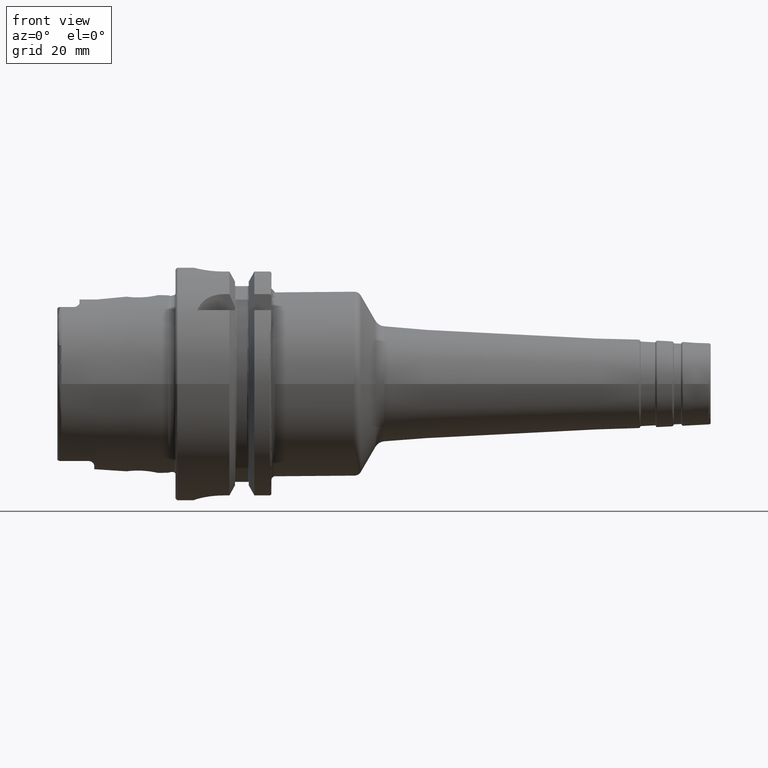
[diagram: clean part render]
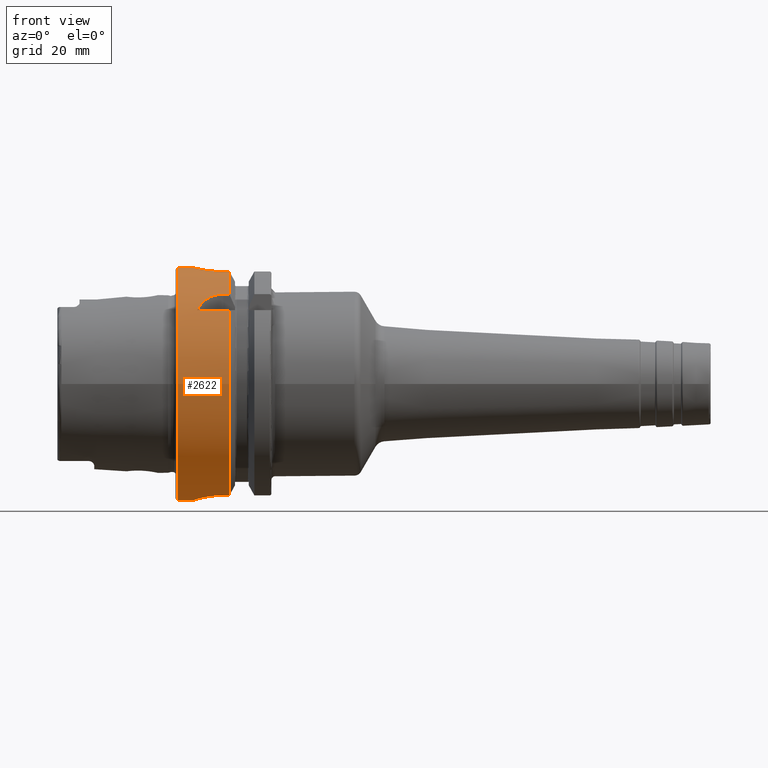
[diagram: same view with one face highlighted and labeled with its STEP entity id]
A machine part, front view. The second image highlights one B-rep face of the part: STEP entity #2622.
In plain terms, the highlighted cylindrical surface (bore or boss wall) has radius 31.5 mm, axis along (1, 0, 0).
Its self-contained STEP definition (entity closure, byte-faithful):
#56=B_SPLINE_CURVE_WITH_KNOTS('',3,(#4894,#4895,#4896,#4897,#4898,#4899,
#4900,#4901,#4902,#4903,#4904,#4905,#4906,#4907,#4908,#4909,#4910,#4911,
#4912,#4913,#4914,#4915,#4916,#4917,#4918,#4919),.UNSPECIFIED.,.F.,.F.,
(4,2,2,2,2,2,2,2,2,2,2,2,4),(0.,0.188688694287611,0.377377388575223,0.56606194688798,
0.754746505200737,0.943431063513494,1.13211562182625,1.32080431611386,1.50949301040147,
1.69818170468908,1.8868703989767,2.07555495728945,2.26423951560221),
 .UNSPECIFIED.);
#57=B_SPLINE_CURVE_WITH_KNOTS('',3,(#4920,#4921,#4922,#4923,#4924,#4925,
#4926,#4927,#4928,#4929),.UNSPECIFIED.,.F.,.F.,(4,2,2,2,4),(2.26423951560221,
2.45292407391497,2.64160863222772,2.83029732651534,3.01898602080295),
 .UNSPECIFIED.);
#60=B_SPLINE_CURVE_WITH_KNOTS('',3,(#4985,#4986,#4987,#4988,#4989,#4990,
#4991,#4992,#4993,#4994,#4995,#4996),.UNSPECIFIED.,.F.,.F.,(4,2,2,2,2,4),
(1.1085154204615,1.31979218709236,1.52798350480179,1.73617482251122,1.90421770126337,
2.07226058001552),.UNSPECIFIED.);
#65=B_SPLINE_CURVE_WITH_KNOTS('',3,(#5101,#5102,#5103,#5104,#5105,#5106,
#5107,#5108,#5109,#5110),.UNSPECIFIED.,.F.,.F.,(4,2,2,2,4),(0.,0.30293011231322,
0.605860224626439,0.90976031392917,1.2136604032319),.UNSPECIFIED.);
#66=B_SPLINE_CURVE_WITH_KNOTS('',3,(#5122,#5123,#5124,#5125,#5126,#5127,
#5128,#5129,#5130,#5131),.UNSPECIFIED.,.F.,.F.,(4,2,2,2,4),(1.20927420824097,
1.5131742975437,1.81707438684643,2.12000449915965,2.42293461147287),
 .UNSPECIFIED.);
#74=B_SPLINE_CURVE_WITH_KNOTS('',3,(#5219,#5220,#5221,#5222,#5223,#5224,
#5225,#5226,#5227,#5228,#5229,#5230,#5231,#5232,#5233,#5234,#5235,#5236),
 .UNSPECIFIED.,.F.,.F.,(4,2,2,2,2,2,2,2,4),(0.,0.302805879979318,0.605611759958635,
0.908372461246501,1.21113316253437,1.51389386382223,1.8166545651101,2.11946044508942,
2.42226632506874),.UNSPECIFIED.);
#127=FACE_BOUND('',#659,.T.);
#230=LINE('',#4960,#347);
#235=LINE('',#5005,#352);
#246=LINE('',#5093,#363);
#254=LINE('',#5159,#371);
#258=LINE('',#5217,#375);
#259=LINE('',#5238,#376);
#260=LINE('',#5241,#377);
#347=VECTOR('',#3536,10.);
#352=VECTOR('',#3547,10.);
#363=VECTOR('',#3594,10.);
#371=VECTOR('',#3618,10.);
#375=VECTOR('',#3628,10.);
#376=VECTOR('',#3629,10.);
#377=VECTOR('',#3632,31.5);
#424=CYLINDRICAL_SURFACE('',#2937,31.5);
#516=FACE_OUTER_BOUND('',#658,.T.);
#658=EDGE_LOOP('',(#2168,#2169,#2170,#2171,#2172,#2173,#2174,#2175,#2176,
#2177,#2178,#2179,#2180,#2181,#2182,#2183,#2184,#2185,#2186));
#659=EDGE_LOOP('',(#2187,#2188));
#868=CIRCLE('',#2915,31.5);
#869=CIRCLE('',#2916,31.5);
#876=CIRCLE('',#2931,31.5);
#878=CIRCLE('',#2938,31.5);
#879=CIRCLE('',#2939,31.5);
#880=CIRCLE('',#2940,31.5);
#881=CIRCLE('',#2941,31.5);
#1124=VERTEX_POINT('',#4891);
#1125=VERTEX_POINT('',#4893);
#1133=VERTEX_POINT('',#4957);
#1134=VERTEX_POINT('',#4959);
#1138=VERTEX_POINT('',#4984);
#1140=VERTEX_POINT('',#5001);
#1145=VERTEX_POINT('',#5017);
#1146=VERTEX_POINT('',#5019);
#1161=VERTEX_POINT('',#5090);
#1162=VERTEX_POINT('',#5092);
#1164=VERTEX_POINT('',#5100);
#1166=VERTEX_POINT('',#5115);
#1168=VERTEX_POINT('',#5121);
#1178=VERTEX_POINT('',#5214);
#1179=VERTEX_POINT('',#5216);
#1180=VERTEX_POINT('',#5218);
#1181=VERTEX_POINT('',#5237);
#1182=VERTEX_POINT('',#5240);
#1183=VERTEX_POINT('',#5242);
#1470=EDGE_CURVE('',#1125,#1124,#56,.T.);
#1471=EDGE_CURVE('',#1124,#1125,#57,.T.);
#1480=EDGE_CURVE('',#1134,#1133,#230,.T.);
#1486=EDGE_CURVE('',#1133,#1138,#60,.T.);
#1490=EDGE_CURVE('',#1138,#1140,#235,.T.);
#1496=EDGE_CURVE('',#1134,#1145,#868,.T.);
#1497=EDGE_CURVE('',#1145,#1146,#869,.T.);
#1518=EDGE_CURVE('',#1162,#1161,#246,.T.);
#1521=EDGE_CURVE('',#1161,#1164,#65,.T.);
#1524=EDGE_CURVE('',#1164,#1166,#876,.T.);
#1527=EDGE_CURVE('',#1166,#1168,#66,.T.);
#1535=EDGE_CURVE('',#1168,#1146,#254,.T.);
#1544=EDGE_CURVE('',#1178,#1140,#878,.T.);
#1545=EDGE_CURVE('',#1178,#1179,#258,.T.);
#1546=EDGE_CURVE('',#1179,#1180,#74,.T.);
#1547=EDGE_CURVE('',#1180,#1181,#259,.T.);
#1548=EDGE_CURVE('',#1162,#1181,#879,.T.);
#1549=EDGE_CURVE('',#1145,#1182,#260,.T.);
#1550=EDGE_CURVE('',#1182,#1183,#880,.T.);
#1551=EDGE_CURVE('',#1183,#1182,#881,.T.);
#2168=ORIENTED_EDGE('',*,*,#1490,.T.);
#2169=ORIENTED_EDGE('',*,*,#1544,.F.);
#2170=ORIENTED_EDGE('',*,*,#1545,.T.);
#2171=ORIENTED_EDGE('',*,*,#1546,.T.);
#2172=ORIENTED_EDGE('',*,*,#1547,.T.);
#2173=ORIENTED_EDGE('',*,*,#1548,.F.);
#2174=ORIENTED_EDGE('',*,*,#1518,.T.);
#2175=ORIENTED_EDGE('',*,*,#1521,.T.);
#2176=ORIENTED_EDGE('',*,*,#1524,.T.);
#2177=ORIENTED_EDGE('',*,*,#1527,.T.);
#2178=ORIENTED_EDGE('',*,*,#1535,.T.);
#2179=ORIENTED_EDGE('',*,*,#1497,.F.);
#2180=ORIENTED_EDGE('',*,*,#1549,.T.);
#2181=ORIENTED_EDGE('',*,*,#1550,.T.);
#2182=ORIENTED_EDGE('',*,*,#1551,.T.);
#2183=ORIENTED_EDGE('',*,*,#1549,.F.);
#2184=ORIENTED_EDGE('',*,*,#1496,.F.);
#2185=ORIENTED_EDGE('',*,*,#1480,.T.);
#2186=ORIENTED_EDGE('',*,*,#1486,.T.);
#2187=ORIENTED_EDGE('',*,*,#1470,.T.);
#2188=ORIENTED_EDGE('',*,*,#1471,.T.);
#2622=ADVANCED_FACE('',(#516,#127),#424,.T.);
#2915=AXIS2_PLACEMENT_3D('',#5018,#3560,#3561);
#2916=AXIS2_PLACEMENT_3D('',#5020,#3562,#3563);
#2931=AXIS2_PLACEMENT_3D('',#5116,#3603,#3604);
#2937=AXIS2_PLACEMENT_3D('',#5213,#3624,#3625);
#2938=AXIS2_PLACEMENT_3D('',#5215,#3626,#3627);
#2939=AXIS2_PLACEMENT_3D('',#5239,#3630,#3631);
#2940=AXIS2_PLACEMENT_3D('',#5243,#3633,#3634);
#2941=AXIS2_PLACEMENT_3D('',#5244,#3635,#3636);
#3536=DIRECTION('',(-1.,0.,0.));
#3547=DIRECTION('',(1.,0.,0.));
#3560=DIRECTION('center_axis',(1.,0.,0.));
#3561=DIRECTION('ref_axis',(0.,0.,-1.));
#3562=DIRECTION('center_axis',(1.,0.,0.));
#3563=DIRECTION('ref_axis',(0.,0.,-1.));
#3594=DIRECTION('',(-1.,0.,0.));
#3603=DIRECTION('center_axis',(-1.,0.,0.));
#3604=DIRECTION('ref_axis',(0.,1.,0.));
#3618=DIRECTION('',(1.,0.,0.));
#3624=DIRECTION('center_axis',(1.,0.,0.));
#3625=DIRECTION('ref_axis',(0.,1.,0.));
#3626=DIRECTION('center_axis',(1.,0.,0.));
#3627=DIRECTION('ref_axis',(0.,0.,-1.));
#3628=DIRECTION('',(-1.,0.,0.));
#3629=DIRECTION('',(1.,0.,0.));
#3630=DIRECTION('center_axis',(1.,0.,0.));
#3631=DIRECTION('ref_axis',(0.,0.,-1.));
#3632=DIRECTION('',(-1.,0.,0.));
#3633=DIRECTION('center_axis',(1.,0.,0.));
#3634=DIRECTION('ref_axis',(0.,0.,-1.));
#3635=DIRECTION('center_axis',(1.,0.,0.));
#3636=DIRECTION('ref_axis',(0.,0.,-1.));
#4891=CARTESIAN_POINT('',(12.,31.5,-6.12323399573677E-16));
#4893=CARTESIAN_POINT('',(7.,31.100643080168,5.));
#4894=CARTESIAN_POINT('Ctrl Pts',(7.,31.100643080168,5.));
#4895=CARTESIAN_POINT('Ctrl Pts',(6.37103768570796,31.100643080168,5.));
#4896=CARTESIAN_POINT('Ctrl Pts',(5.70089281579202,31.1216953112949,4.87408354368814));
#4897=CARTESIAN_POINT('Ctrl Pts',(4.46931934300962,31.1973810209855,4.36348784122736));
#4898=CARTESIAN_POINT('Ctrl Pts',(3.90779781350673,31.2508828501623,3.97886562537221));
#4899=CARTESIAN_POINT('Ctrl Pts',(3.021144092268,31.3510329557602,3.09221190413348));
#4900=CARTESIAN_POINT('Ctrl Pts',(2.63651425348544,31.4042391414288,2.5306861925578));
#4901=CARTESIAN_POINT('Ctrl Pts',(2.12591301120586,31.4792463697936,1.29909839144709));
#4902=CARTESIAN_POINT('Ctrl Pts',(2.,31.5,0.62894852770919));
#4903=CARTESIAN_POINT('Ctrl Pts',(2.,31.5,-0.62894852770919));
#4904=CARTESIAN_POINT('Ctrl Pts',(2.12591301120586,31.4792463697936,-1.29909839144709));
#4905=CARTESIAN_POINT('Ctrl Pts',(2.63651425348544,31.4042391414288,-2.5306861925578));
#4906=CARTESIAN_POINT('Ctrl Pts',(3.021144092268,31.3510329557602,-3.09221190413348));
#4907=CARTESIAN_POINT('Ctrl Pts',(3.90779781350673,31.2508828501623,-3.97886562537221));
#4908=CARTESIAN_POINT('Ctrl Pts',(4.46931934300962,31.1973810209855,-4.36348784122736));
#4909=CARTESIAN_POINT('Ctrl Pts',(5.70089281579202,31.1216953112949,-4.87408354368814));
#4910=CARTESIAN_POINT('Ctrl Pts',(6.37103768570796,31.100643080168,-5.));
#4911=CARTESIAN_POINT('Ctrl Pts',(7.62896231429203,31.100643080168,-5.));
#4912=CARTESIAN_POINT('Ctrl Pts',(8.29910718420797,31.1216953112949,-4.87408354368814));
#4913=CARTESIAN_POINT('Ctrl Pts',(9.53068065699038,31.1973810209855,-4.36348784122736));
#4914=CARTESIAN_POINT('Ctrl Pts',(10.0922021864933,31.2508828501623,-3.97886562537221));
#4915=CARTESIAN_POINT('Ctrl Pts',(10.978855907732,31.3510329557602,-3.09221190413348));
#4916=CARTESIAN_POINT('Ctrl Pts',(11.3634857465146,31.4042391414288,-2.53068619255779));
#4917=CARTESIAN_POINT('Ctrl Pts',(11.8740869887941,31.4792463697936,-1.29909839144708));
#4918=CARTESIAN_POINT('Ctrl Pts',(12.,31.5,-0.62894852770919));
#4919=CARTESIAN_POINT('Ctrl Pts',(12.,31.5,-6.93889390390723E-16));
#4920=CARTESIAN_POINT('Ctrl Pts',(12.,31.5,-8.32667268468867E-16));
#4921=CARTESIAN_POINT('Ctrl Pts',(12.,31.5,0.628948527709188));
#4922=CARTESIAN_POINT('Ctrl Pts',(11.8740869887941,31.4792463697936,1.29909839144708));
#4923=CARTESIAN_POINT('Ctrl Pts',(11.3634857465146,31.4042391414288,2.53068619255779));
#4924=CARTESIAN_POINT('Ctrl Pts',(10.978855907732,31.3510329557602,3.09221190413348));
#4925=CARTESIAN_POINT('Ctrl Pts',(10.0922021864933,31.2508828501623,3.97886562537221));
#4926=CARTESIAN_POINT('Ctrl Pts',(9.53068065699038,31.1973810209855,4.36348784122736));
#4927=CARTESIAN_POINT('Ctrl Pts',(8.29910718420797,31.1216953112949,4.87408354368814));
#4928=CARTESIAN_POINT('Ctrl Pts',(7.62896231429203,31.100643080168,5.));
#4929=CARTESIAN_POINT('Ctrl Pts',(7.,31.100643080168,5.));
#4957=CARTESIAN_POINT('',(5.88828609634419,-24.3361870472759,20.));
#4959=CARTESIAN_POINT('',(14.6225009252407,-24.3361870472759,20.));
#4960=CARTESIAN_POINT('',(7.56125046262034,-24.3361870472759,20.));
#4984=CARTESIAN_POINT('',(13.,-20.,24.3361870472759));
#4985=CARTESIAN_POINT('Ctrl Pts',(5.88828609634419,-24.3361870472759,20.));
#4986=CARTESIAN_POINT('Ctrl Pts',(6.11069532820048,-23.9044753723342,20.5253108035937));
#4987=CARTESIAN_POINT('Ctrl Pts',(6.38325999044306,-23.4713523250807,21.0173865932788));
#4988=CARTESIAN_POINT('Ctrl Pts',(7.044898076458,-22.6317364276543,21.9186738868096));
#4989=CARTESIAN_POINT('Ctrl Pts',(7.46714468561685,-22.1861072682036,22.3682920878559));
#4990=CARTESIAN_POINT('Ctrl Pts',(8.46725531403812,-21.3767026700071,23.143042657319));
#4991=CARTESIAN_POINT('Ctrl Pts',(9.04646427720221,-21.0147449478223,23.4683362269255));
#4992=CARTESIAN_POINT('Ctrl Pts',(10.1145001432702,-20.5200081116516,23.9011603796022));
#4993=CARTESIAN_POINT('Ctrl Pts',(10.670823971716,-20.3234249831704,24.0673462447194));
#4994=CARTESIAN_POINT('Ctrl Pts',(11.8334528721306,-20.063121855676,24.2847667849476));
#4995=CARTESIAN_POINT('Ctrl Pts',(12.4398570708262,-20.,24.3361870472759));
#4996=CARTESIAN_POINT('Ctrl Pts',(13.,-20.,24.3361870472759));
#5001=CARTESIAN_POINT('',(14.6225009252407,-20.,24.3361870472759));
#5005=CARTESIAN_POINT('',(7.56125046262035,-20.,24.3361870472759));
#5017=CARTESIAN_POINT('',(14.6225009252407,-31.5,-3.85763741731416E-15));
#5018=CARTESIAN_POINT('Origin',(14.6225009252407,0.,0.));
#5019=CARTESIAN_POINT('',(14.6225009252407,-9.,-30.1869176962472));
#5020=CARTESIAN_POINT('Origin',(14.6225009252407,0.,0.));
#5090=CARTESIAN_POINT('',(13.,9.00000000000001,-30.1869176962472));
#5092=CARTESIAN_POINT('',(14.6225009252407,9.,-30.1869176962472));
#5093=CARTESIAN_POINT('',(7.56125046262035,9.00000000000001,-30.1869176962472));
#5100=CARTESIAN_POINT('',(5.,1.,-31.4841229828623));
#5101=CARTESIAN_POINT('Ctrl Pts',(13.,9.00000000000001,-30.1869176962472));
#5102=CARTESIAN_POINT('Ctrl Pts',(11.9902329589559,9.00000000000001,-30.1869176962472));
#5103=CARTESIAN_POINT('Ctrl Pts',(10.9171740660538,8.79719825889175,-30.2496070227108));
#5104=CARTESIAN_POINT('Ctrl Pts',(8.9496642215883,7.98063403850822,-30.4752177477269));
#5105=CARTESIAN_POINT('Ctrl Pts',(8.05472493283182,7.3671500962837,-30.6348764237341));
#5106=CARTESIAN_POINT('Ctrl Pts',(6.63955745341061,5.95454409907419,-30.9405445582004));
#5107=CARTESIAN_POINT('Ctrl Pts',(6.02370102555041,5.0583660804473,-31.1070804719497));
#5108=CARTESIAN_POINT('Ctrl Pts',(5.2037733306458,3.08756640398172,-31.3640631381934));
#5109=CARTESIAN_POINT('Ctrl Pts',(5.,2.01248971281588,-31.4519642432536));
#5110=CARTESIAN_POINT('Ctrl Pts',(5.,1.00000000000001,-31.4841229828623));
#5115=CARTESIAN_POINT('',(5.,-0.999999999999999,-31.4841229828623));
#5116=CARTESIAN_POINT('Origin',(5.,0.,0.));
#5121=CARTESIAN_POINT('',(13.,-9.,-30.1869176962472));
#5122=CARTESIAN_POINT('Ctrl Pts',(5.,-0.999999999999997,-31.4841229828623));
#5123=CARTESIAN_POINT('Ctrl Pts',(5.,-2.01248971281587,-31.4519642432536));
#5124=CARTESIAN_POINT('Ctrl Pts',(5.2037733306458,-3.08756640398171,-31.3640631381934));
#5125=CARTESIAN_POINT('Ctrl Pts',(6.02370102555041,-5.05836608044729,-31.1070804719497));
#5126=CARTESIAN_POINT('Ctrl Pts',(6.63955745341061,-5.95454409907418,-30.9405445582004));
#5127=CARTESIAN_POINT('Ctrl Pts',(8.05472493283182,-7.36715009628369,-30.6348764237341));
#5128=CARTESIAN_POINT('Ctrl Pts',(8.9496642215883,-7.98063403850821,-30.4752177477269));
#5129=CARTESIAN_POINT('Ctrl Pts',(10.9171740660538,-8.79719825889174,-30.2496070227108));
#5130=CARTESIAN_POINT('Ctrl Pts',(11.9902329589559,-9.,-30.1869176962472));
#5131=CARTESIAN_POINT('Ctrl Pts',(13.,-9.,-30.1869176962472));
#5159=CARTESIAN_POINT('',(7.56125046262035,-8.99999999999999,-30.1869176962472));
#5213=CARTESIAN_POINT('Origin',(7.56125046262035,0.,0.));
#5214=CARTESIAN_POINT('',(14.6225009252407,-8.,30.4671954731642));
#5215=CARTESIAN_POINT('Origin',(14.6225009252407,0.,0.));
#5216=CARTESIAN_POINT('',(13.,-8.,30.4671954731642));
#5217=CARTESIAN_POINT('',(7.56125046262035,-8.,30.4671954731642));
#5218=CARTESIAN_POINT('',(13.,8.,30.4671954731642));
#5219=CARTESIAN_POINT('Ctrl Pts',(13.,-8.,30.4671954731643));
#5220=CARTESIAN_POINT('Ctrl Pts',(11.9906470667356,-8.,30.4671954731643));
#5221=CARTESIAN_POINT('Ctrl Pts',(10.9172075930168,-7.79737202490167,30.5225803085525));
#5222=CARTESIAN_POINT('Ctrl Pts',(8.94758399331801,-6.97961067526075,30.719895002943));
#5223=CARTESIAN_POINT('Ctrl Pts',(8.05099322370438,-6.36470172268915,30.8586830127239));
#5224=CARTESIAN_POINT('Ctrl Pts',(6.63540388828045,-4.94911238726521,31.1170994373341));
#5225=CARTESIAN_POINT('Ctrl Pts',(6.02041263015313,-4.05247770930662,31.2539072689014));
#5226=CARTESIAN_POINT('Ctrl Pts',(5.20259114887399,-2.08269813865027,31.4466478906396));
#5227=CARTESIAN_POINT('Ctrl Pts',(5.,-1.00920233762622,31.5));
#5228=CARTESIAN_POINT('Ctrl Pts',(5.,1.00920233762622,31.5));
#5229=CARTESIAN_POINT('Ctrl Pts',(5.20259114887399,2.08269813865027,31.4466478906396));
#5230=CARTESIAN_POINT('Ctrl Pts',(6.02041263015313,4.05247770930662,31.2539072689014));
#5231=CARTESIAN_POINT('Ctrl Pts',(6.63540388828045,4.94911238726521,31.1170994373341));
#5232=CARTESIAN_POINT('Ctrl Pts',(8.05099322370439,6.36470172268915,30.8586830127239));
#5233=CARTESIAN_POINT('Ctrl Pts',(8.94758399331801,6.97961067526075,30.719895002943));
#5234=CARTESIAN_POINT('Ctrl Pts',(10.9172075930168,7.79737202490167,30.5225803085525));
#5235=CARTESIAN_POINT('Ctrl Pts',(11.9906470667356,8.,30.4671954731643));
#5236=CARTESIAN_POINT('Ctrl Pts',(13.,8.,30.4671954731643));
#5237=CARTESIAN_POINT('',(14.6225009252407,8.,30.4671954731642));
#5238=CARTESIAN_POINT('',(7.56125046262035,8.,30.4671954731642));
#5239=CARTESIAN_POINT('Origin',(14.6225009252407,0.,0.));
#5240=CARTESIAN_POINT('',(0.499999999999998,-31.5,-3.85763741731416E-15));
#5241=CARTESIAN_POINT('',(7.56125046262035,-31.5,-3.85763741731416E-15));
#5242=CARTESIAN_POINT('',(0.5,31.5,0.));
#5243=CARTESIAN_POINT('Origin',(0.499999999999998,0.,0.));
#5244=CARTESIAN_POINT('Origin',(0.499999999999998,0.,0.));